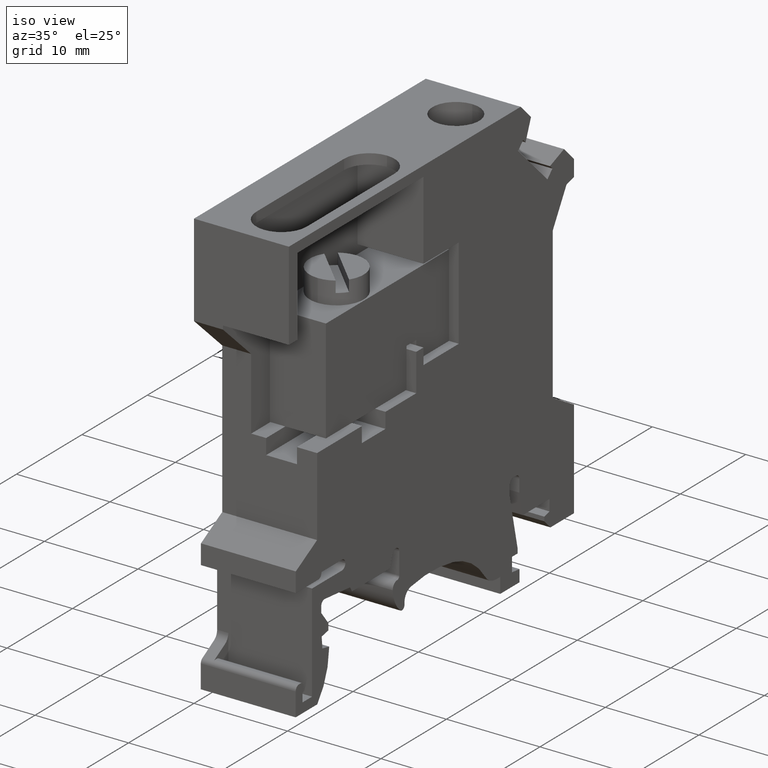
[diagram: clean part render]
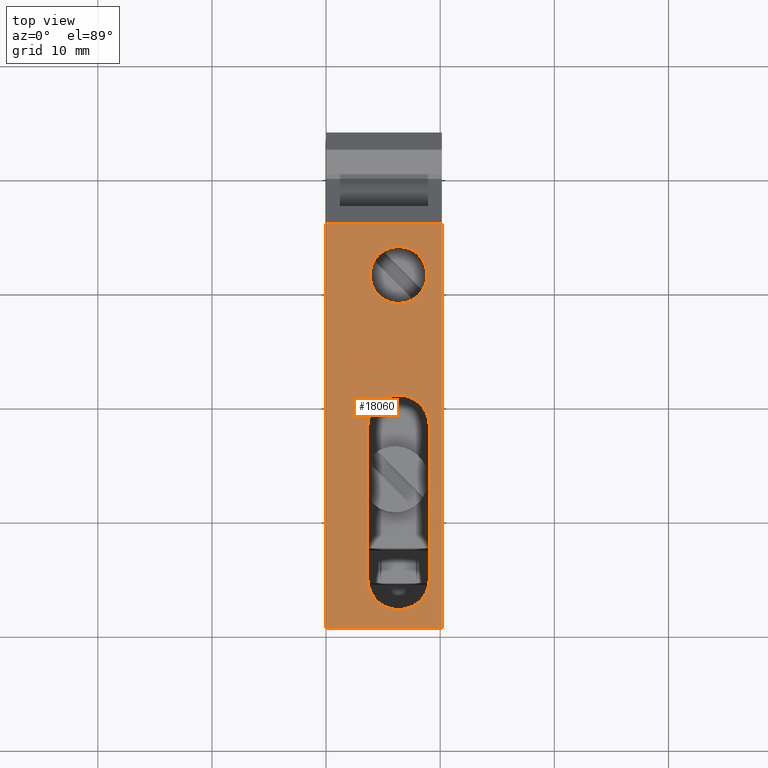
[diagram: tour spotlight — one face highlighted and labeled with its STEP entity id]
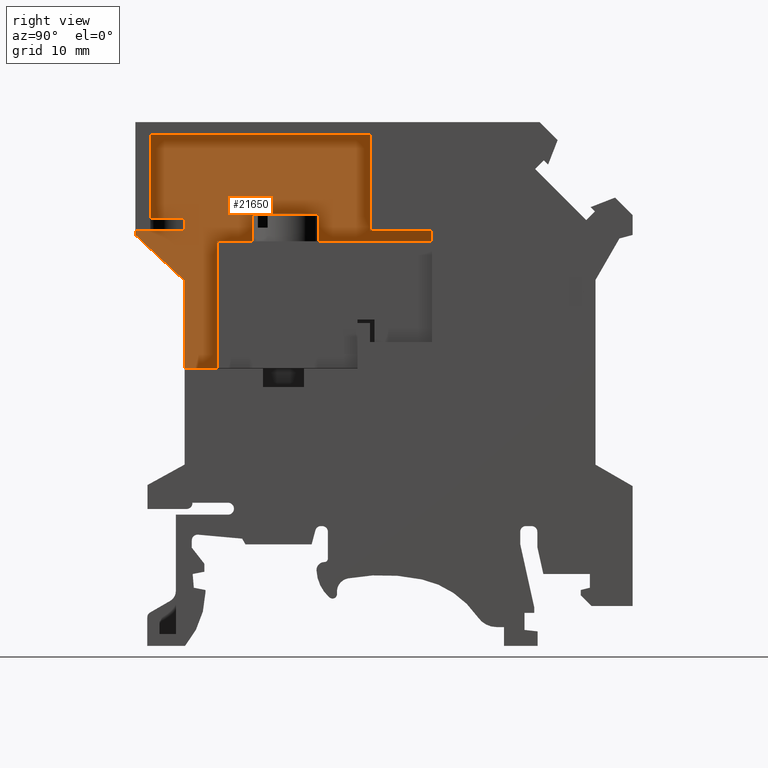
[diagram: tour spotlight — one face highlighted and labeled with its STEP entity id]
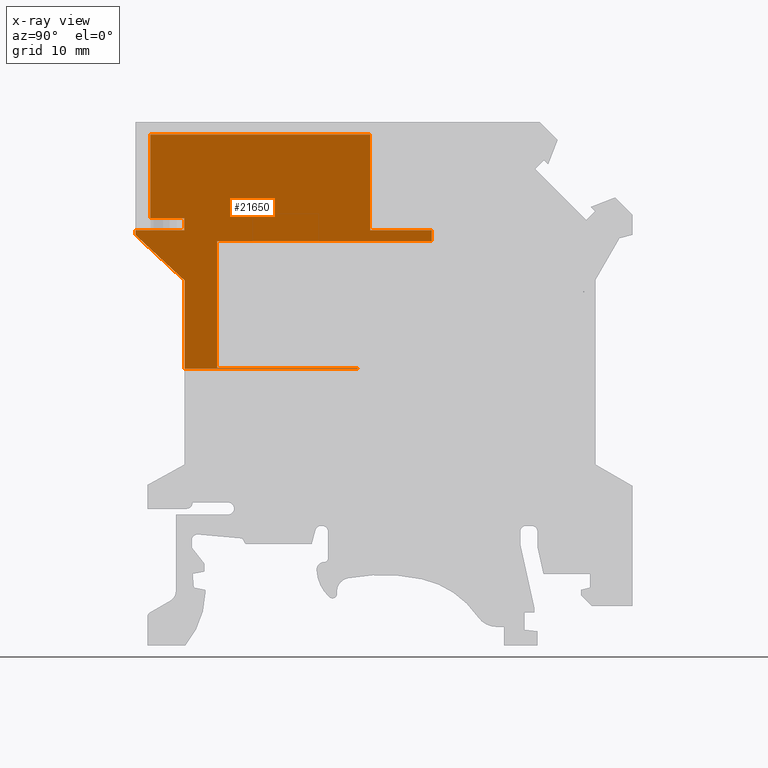
[diagram: x-ray of the same camera — body ghosted, this tour face saturated]
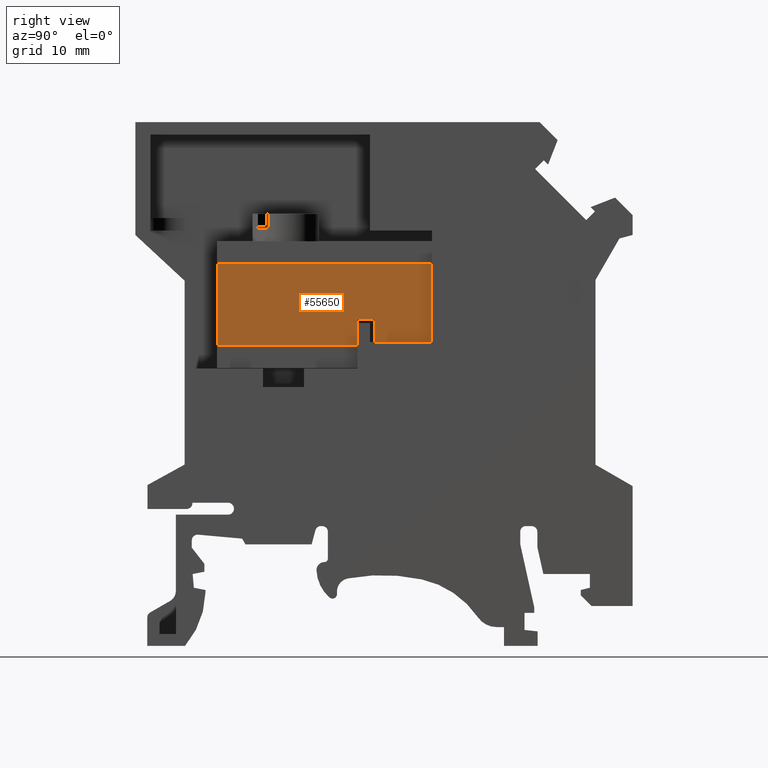
[diagram: tour spotlight — one face highlighted and labeled with its STEP entity id]
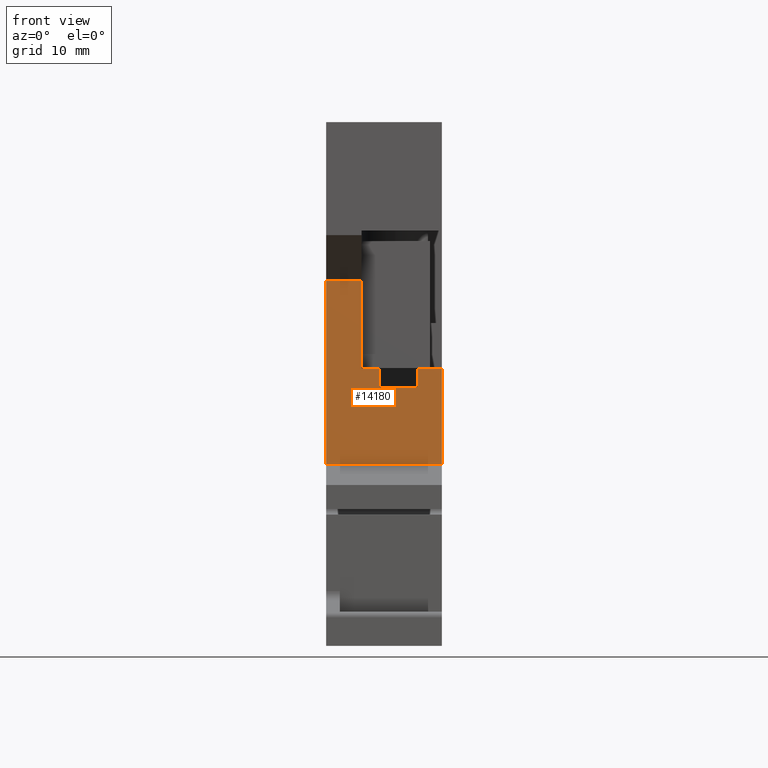
[diagram: tour spotlight — one face highlighted and labeled with its STEP entity id]
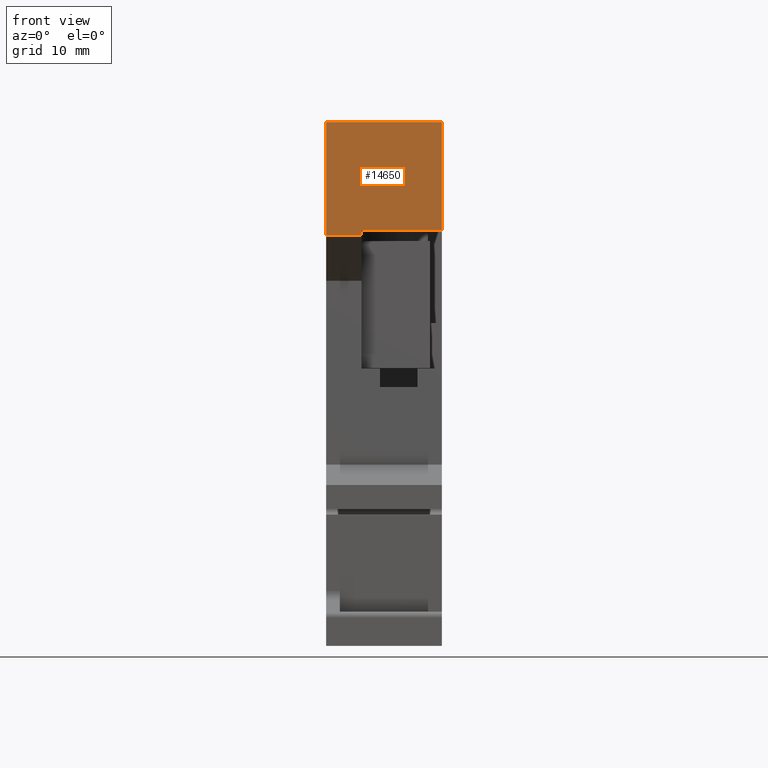
[diagram: tour spotlight — one face highlighted and labeled with its STEP entity id]
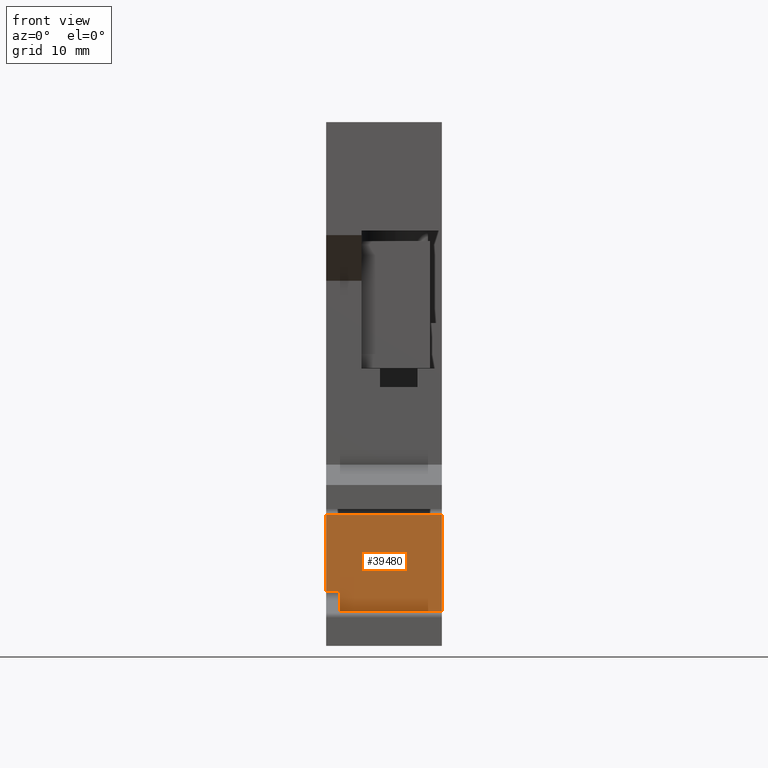
[diagram: tour spotlight — one face highlighted and labeled with its STEP entity id]
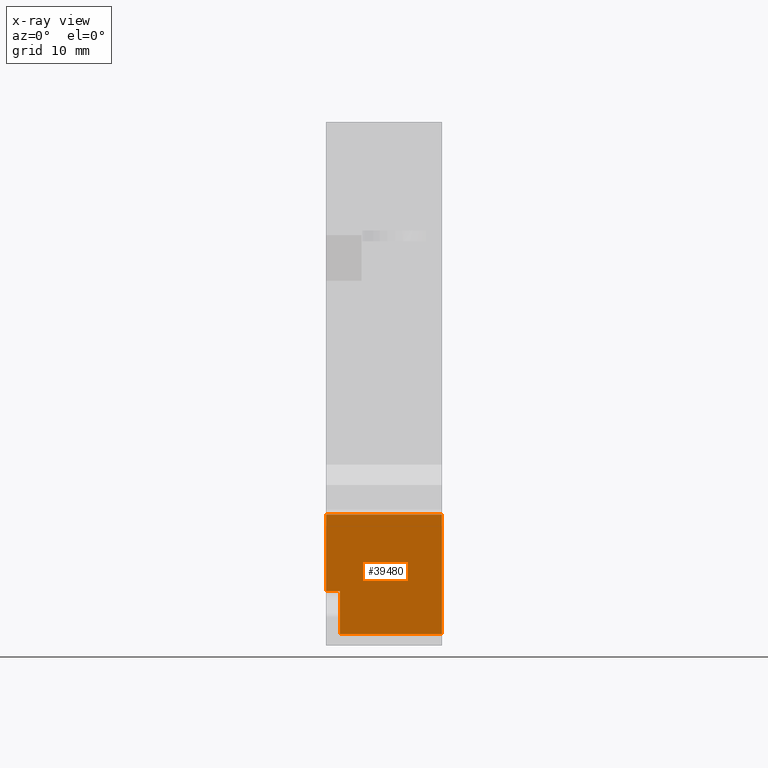
[diagram: x-ray of the same camera — body ghosted, this tour face saturated]
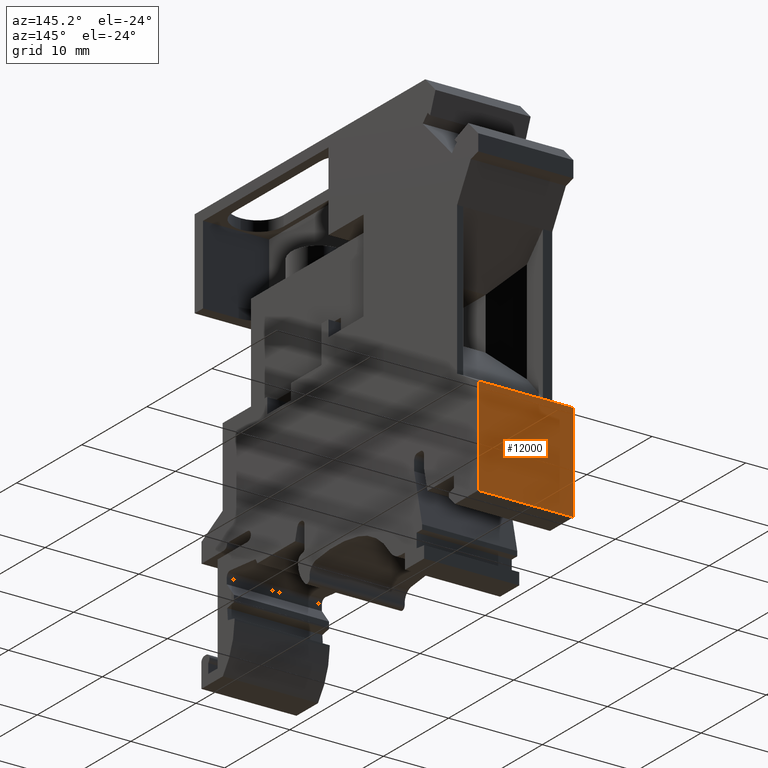
[diagram: tour spotlight — one face highlighted and labeled with its STEP entity id]
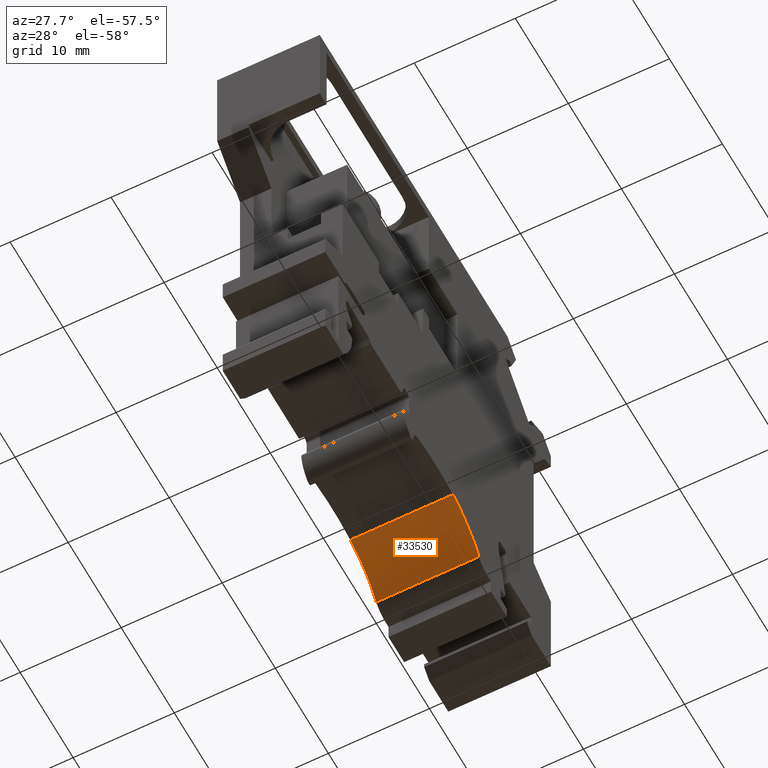
[diagram: tour spotlight — one face highlighted and labeled with its STEP entity id]
A machine part: a face-by-face anatomy tour. The part has 152 B-rep faces; the first image is the clean iso view, then the 8 largest visible faces are spotlighted one at a time (largest first), each with its STEP entity span.

Face 1 — top view, entity #18060. In plain terms, the highlighted planar face has unit normal (0, 0, 1).
Definition (entity closure, byte-faithful):
#600=CARTESIAN_POINT('',(44.9291997327281,36.058658177701,0.));
#610=VERTEX_POINT('',#600);
#640=CARTESIAN_POINT('',(-375.562272307509,36.058658177701,0.));
#650=DIRECTION('',(1.,0.,0.));
#660=VECTOR('',#650,1.);
#670=LINE('',#640,#660);
#680=CARTESIAN_POINT('',(9.51919973272817,36.058658177701,0.));
#690=VERTEX_POINT('',#680);
#700=EDGE_CURVE('',#690,#610,#670,.T.);
#14350=CARTESIAN_POINT('',(9.51919973272817,36.058658177701,10.15));
#14360=VERTEX_POINT('',#14350);
#14570=CARTESIAN_POINT('',(9.51919973272817,36.058658177701,0.));
#14580=DIRECTION('',(0.,0.,1.));
#14590=VECTOR('',#14580,1.);
#14600=LINE('',#14570,#14590);
#14610=EDGE_CURVE('',#690,#14360,#14600,.T.);
#16990=CARTESIAN_POINT('',(44.9291997327281,36.058658177701,10.15));
#17000=VERTEX_POINT('',#16990);
#17030=CARTESIAN_POINT('',(44.9291997327281,36.058658177701,0.));
#17040=DIRECTION('',(0.,0.,1.));
#17050=VECTOR('',#17040,1.);
#17060=LINE('',#17030,#17050);
#17070=EDGE_CURVE('',#610,#17000,#17060,.T.);
#17210=CARTESIAN_POINT('',(36.1291997327281,36.058658177701,12.));
#17220=DIRECTION('',(-0.,1.,0.));
#17230=DIRECTION('',(1.,0.,0.));
#17240=AXIS2_PLACEMENT_3D('',#17210,#17220,#17230);
#17250=PLANE('',#17240);
#17260=CARTESIAN_POINT('',(27.2291997327281,36.058658177701,6.35));
#17270=DIRECTION('',(0.,1.,0.));
#17280=DIRECTION('',(1.,0.,0.));
#17290=AXIS2_PLACEMENT_3D('',#17260,#17270,#17280);
#17300=CIRCLE('',#17290,2.7);
#17310=CARTESIAN_POINT('',(27.2291997327281,36.058658177701,9.05));
#17320=VERTEX_POINT('',#17310);
#17330=CARTESIAN_POINT('',(29.9291997327281,36.058658177701,6.35));
#17340=VERTEX_POINT('',#17330);
#17350=EDGE_CURVE('',#17320,#17340,#17300,.T.);
#17360=ORIENTED_EDGE('',*,*,#17350,.F.);
#17370=CARTESIAN_POINT('',(27.2291997327281,36.058658177701,6.35));
#17380=DIRECTION('',(0.,1.,0.));
#17390=DIRECTION('',(1.,0.,0.));
#17400=AXIS2_PLACEMENT_3D('',#17370,#17380,#17390);
#17410=CIRCLE('',#17400,2.7);
#17420=CARTESIAN_POINT('',(27.2291997327281,36.058658177701,3.65));
#17430=VERTEX_POINT('',#17420);
#17440=EDGE_CURVE('',#17340,#17430,#17410,.T.);
#17450=ORIENTED_EDGE('',*,*,#17440,.F.);
#17460=CARTESIAN_POINT('',(0.,36.058658177701,3.65));
#17470=DIRECTION('',(1.,0.,0.));
#17480=VECTOR('',#17470,1.);
#17490=LINE('',#17460,#17480);
#17500=CARTESIAN_POINT('',(13.8291997327281,36.058658177701,3.65));
#17510=VERTEX_POINT('',#17500);
#17520=EDGE_CURVE('',#17510,#17430,#17490,.T.);
#17530=ORIENTED_EDGE('',*,*,#17520,.T.);
#17540=CARTESIAN_POINT('',(13.8291997327281,36.058658177701,6.35));
#17550=DIRECTION('',(0.,1.,0.));
#17560=DIRECTION('',(1.,0.,0.));
#17570=AXIS2_PLACEMENT_3D('',#17540,#17550,#17560);
#17580=CIRCLE('',#17570,2.7);
#17590=CARTESIAN_POINT('',(11.1291997327281,36.058658177701,6.35));
#17600=VERTEX_POINT('',#17590);
#17610=EDGE_CURVE('',#17510,#17600,#17580,.T.);
#17620=ORIENTED_EDGE('',*,*,#17610,.F.);
#17630=CARTESIAN_POINT('',(13.8291997327281,36.058658177701,6.35));
#17640=DIRECTION('',(0.,-1.,0.));
#17650=DIRECTION('',(-1.,0.,0.));
#17660=AXIS2_PLACEMENT_3D('',#17630,#17640,#17650);
#17670=CIRCLE('',#17660,2.7);
#17680=CARTESIAN_POINT('',(13.8291997327281,36.058658177701,9.05));
#17690=VERTEX_POINT('',#17680);
#17700=EDGE_CURVE('',#17690,#17600,#17670,.T.);
#17710=ORIENTED_EDGE('',*,*,#17700,.T.);
#17720=CARTESIAN_POINT('',(0.,36.058658177701,9.05));
#17730=DIRECTION('',(-1.,0.,0.));
#17740=VECTOR('',#17730,1.);
#17750=LINE('',#17720,#17740);
#17760=EDGE_CURVE('',#17320,#17690,#17750,.T.);
#17770=ORIENTED_EDGE('',*,*,#17760,.T.);
#17780=EDGE_LOOP('',(#17770,#17710,#17620,#17530,#17450,#17360));
#17790=FACE_BOUND('',#17780,.T.);
#17800=ORIENTED_EDGE('',*,*,#700,.F.);
#17810=ORIENTED_EDGE('',*,*,#17070,.F.);
#17820=CARTESIAN_POINT('',(0.,36.058658177701,10.15));
#17830=DIRECTION('',(1.,0.,0.));
#17840=VECTOR('',#17830,1.);
#17850=LINE('',#17820,#17840);
#17860=EDGE_CURVE('',#14360,#17000,#17850,.T.);
#17870=ORIENTED_EDGE('',*,*,#17860,.T.);
#17880=ORIENTED_EDGE('',*,*,#14610,.T.);
#17890=EDGE_LOOP('',(#17880,#17870,#17810,#17800));
#17900=FACE_OUTER_BOUND('',#17890,.T.);
#17910=CARTESIAN_POINT('',(40.4541997327281,36.058658177701,6.35));
#17920=DIRECTION('',(0.,1.,0.));
#17930=DIRECTION('',(1.,0.,0.));
#17940=AXIS2_PLACEMENT_3D('',#17910,#17920,#17930);
#17950=CIRCLE('',#17940,2.5);
#17960=CARTESIAN_POINT('',(42.9541997327281,36.058658177701,6.35));
#17970=VERTEX_POINT('',#17960);
#17980=CARTESIAN_POINT('',(37.9541997327281,36.058658177701,6.35));
#17990=VERTEX_POINT('',#17980);
#18000=EDGE_CURVE('',#17970,#17990,#17950,.T.);
#18010=ORIENTED_EDGE('',*,*,#18000,.F.);
#18020=EDGE_CURVE('',#17990,#17970,#17950,.T.);
#18030=ORIENTED_EDGE('',*,*,#18020,.F.);
#18040=EDGE_LOOP('',(#18030,#18010));
#18050=FACE_BOUND('',#18040,.T.);
#18060=ADVANCED_FACE('',(#17790,#17900,#18050),#17250,.T.);

Face 2 — right view, entity #21650. An x-ray twin of the same camera follows (body ghosted, this face saturated) — the face is partly hidden behind the body. In plain terms, the highlighted planar face has unit normal (1, 0, 0).
Definition (entity closure, byte-faithful):
#9100=CARTESIAN_POINT('',(10.8191997327281,27.6586581777009,3.1));
#9110=VERTEX_POINT('',#9100);
#9160=CARTESIAN_POINT('',(0.,27.6586581777009,3.1));
#9170=DIRECTION('',(-1.,0.,0.));
#9180=VECTOR('',#9170,1.);
#9190=LINE('',#9160,#9180);
#9200=CARTESIAN_POINT('',(13.8191997327281,27.6586581777009,3.1));
#9210=VERTEX_POINT('',#9200);
#9220=EDGE_CURVE('',#9210,#9110,#9190,.T.);
#13250=CARTESIAN_POINT('',(13.8291997327281,22.1586581777013,3.1));
#13260=VERTEX_POINT('',#13250);
#13340=CARTESIAN_POINT('',(9.51919973272817,26.1586581777011,3.1));
#13350=VERTEX_POINT('',#13340);
#13380=CARTESIAN_POINT('',(-375.562272307509,383.542854966767,3.1));
#13390=DIRECTION('',(0.732975177552117,-0.680255385199149,0.));
#13400=VECTOR('',#13390,1.);
#13410=LINE('',#13380,#13400);
#13420=EDGE_CURVE('',#13350,#13260,#13410,.T.);
#13590=CARTESIAN_POINT('',(13.8291997327281,0.,3.1));
#13600=DIRECTION('',(0.,1.,0.));
#13610=VECTOR('',#13600,1.);
#13620=LINE('',#13590,#13610);
#13630=CARTESIAN_POINT('',(13.8291997327281,14.458658177701,3.1));
#13640=VERTEX_POINT('',#13630);
#13650=EDGE_CURVE('',#13640,#13260,#13620,.T.);
#14450=CARTESIAN_POINT('',(9.51919973272817,26.5586581777009,3.1));
#14460=VERTEX_POINT('',#14450);
#14490=CARTESIAN_POINT('',(9.51919973272817,-305.746632837346,3.1));
#14500=DIRECTION('',(0.,-1.,0.));
#14510=VECTOR('',#14500,1.);
#14520=LINE('',#14490,#14510);
#14530=EDGE_CURVE('',#14460,#13350,#14520,.T.);
#18770=CARTESIAN_POINT('',(30.0791997327281,34.958658177701,3.1));
#18780=VERTEX_POINT('',#18770);
#18830=CARTESIAN_POINT('',(0.,34.958658177701,3.1));
#18840=DIRECTION('',(1.,0.,0.));
#18850=VECTOR('',#18840,1.);
#18860=LINE('',#18830,#18850);
#18870=CARTESIAN_POINT('',(10.8191997327281,34.958658177701,3.1));
#18880=VERTEX_POINT('',#18870);
#18890=EDGE_CURVE('',#18880,#18780,#18860,.T.);
#19390=CARTESIAN_POINT('',(13.8191997327281,26.5586581777009,3.1));
#19400=VERTEX_POINT('',#19390);
#19430=CARTESIAN_POINT('',(-375.562272307509,26.5586581777009,3.1));
#19440=DIRECTION('',(-1.,0.,0.));
#19450=VECTOR('',#19440,1.);
#19460=LINE('',#19430,#19450);
#19470=EDGE_CURVE('',#19400,#14460,#19460,.T.);
#19740=CARTESIAN_POINT('',(10.8191997327281,26.5586581777009,3.1));
#19750=DIRECTION('',(0.,1.,0.));
#19760=VECTOR('',#19750,1.);
#19770=LINE('',#19740,#19760);
#19780=EDGE_CURVE('',#9110,#18880,#19770,.T.);
#20670=CARTESIAN_POINT('',(27.2241997327281,15.6522612732526,3.1));
#20680=DIRECTION('',(0.,0.,1.));
#20690=DIRECTION('',(1.,0.,0.));
#20700=AXIS2_PLACEMENT_3D('',#20670,#20680,#20690);
#20710=PLANE('',#20700);
#20720=CARTESIAN_POINT('',(35.479199732728,-305.746632837346,3.1));
#20730=DIRECTION('',(3.53307768457147E-16,1.,0.));
#20740=VECTOR('',#20730,1.);
#20750=LINE('',#20720,#20740);
#20760=CARTESIAN_POINT('',(35.4791997327281,25.611678746394,3.1));
#20770=VERTEX_POINT('',#20760);
#20780=CARTESIAN_POINT('',(35.4791997327281,26.5586581777009,3.1));
#20790=VERTEX_POINT('',#20780);
#20800=EDGE_CURVE('',#20770,#20790,#20750,.T.);
#20810=ORIENTED_EDGE('',*,*,#20800,.T.);
#20820=CARTESIAN_POINT('',(0.,25.611678746394,3.1));
#20830=DIRECTION('',(1.,0.,0.));
#20840=VECTOR('',#20830,1.);
#20850=LINE('',#20820,#20840);
#20860=CARTESIAN_POINT('',(16.6791997327282,25.611678746394,3.1));
#20870=VERTEX_POINT('',#20860);
#20880=EDGE_CURVE('',#20870,#20770,#20850,.T.);
#20890=ORIENTED_EDGE('',*,*,#20880,.T.);
#20900=CARTESIAN_POINT('',(16.6791997327282,0.,3.1));
#20910=DIRECTION('',(0.,-1.,0.));
#20920=VECTOR('',#20910,1.);
#20930=LINE('',#20900,#20920);
#20940=CARTESIAN_POINT('',(16.6791997327282,23.658658177701,3.1));
#20950=VERTEX_POINT('',#20940);
#20960=EDGE_CURVE('',#20870,#20950,#20930,.T.);
#20970=ORIENTED_EDGE('',*,*,#20960,.F.);
#20980=CARTESIAN_POINT('',(16.6791997327282,0.,3.1));
#20990=DIRECTION('',(0.,-1.,0.));
#21000=VECTOR('',#20990,1.);
#21010=LINE('',#20980,#21000);
#21020=CARTESIAN_POINT('',(16.6791997327282,16.458658177701,3.1));
#21030=VERTEX_POINT('',#21020);
#21040=EDGE_CURVE('',#20950,#21030,#21010,.T.);
#21050=ORIENTED_EDGE('',*,*,#21040,.F.);
#21060=CARTESIAN_POINT('',(16.6791997327282,0.,3.1));
#21070=DIRECTION('',(0.,-1.,0.));
#21080=VECTOR('',#21070,1.);
#21090=LINE('',#21060,#21080);
#21100=CARTESIAN_POINT('',(16.6791997327282,14.505637609008,3.1));
#21110=VERTEX_POINT('',#21100);
#21120=EDGE_CURVE('',#21030,#21110,#21090,.T.);
#21130=ORIENTED_EDGE('',*,*,#21120,.F.);
#21140=CARTESIAN_POINT('',(0.,14.505637609008,3.1));
#21150=DIRECTION('',(-1.,0.,0.));
#21160=VECTOR('',#21150,1.);
#21170=LINE('',#21140,#21160);
#21180=CARTESIAN_POINT('',(28.9791997327282,14.505637609008,3.1));
#21190=VERTEX_POINT('',#21180);
#21200=EDGE_CURVE('',#21190,#21110,#21170,.T.);
#21210=ORIENTED_EDGE('',*,*,#21200,.T.);
#21220=CARTESIAN_POINT('',(28.9791997327281,0.,3.1));
#21230=DIRECTION('',(0.,1.,0.));
#21240=VECTOR('',#21230,1.);
#21250=LINE('',#21220,#21240);
#21260=CARTESIAN_POINT('',(28.9791997327281,14.458658177701,3.1));
#21270=VERTEX_POINT('',#21260);
#21280=EDGE_CURVE('',#21270,#21190,#21250,.T.);
#21290=ORIENTED_EDGE('',*,*,#21280,.T.);
#21300=CARTESIAN_POINT('',(0.,14.458658177701,3.1));
#21310=DIRECTION('',(-1.,0.,0.));
#21320=VECTOR('',#21310,1.);
#21330=LINE('',#21300,#21320);
#21340=EDGE_CURVE('',#21270,#13640,#21330,.T.);
#21350=ORIENTED_EDGE('',*,*,#21340,.F.);
#21360=ORIENTED_EDGE('',*,*,#13650,.F.);
#21370=ORIENTED_EDGE('',*,*,#13420,.T.);
#21380=ORIENTED_EDGE('',*,*,#14530,.T.);
#21390=ORIENTED_EDGE('',*,*,#19470,.T.);
#21400=CARTESIAN_POINT('',(13.8191997327281,0.,3.1));
#21410=DIRECTION('',(0.,1.,0.));
#21420=VECTOR('',#21410,1.);
#21430=LINE('',#21400,#21420);
#21440=EDGE_CURVE('',#19400,#9210,#21430,.T.);
#21450=ORIENTED_EDGE('',*,*,#21440,.F.);
#21460=ORIENTED_EDGE('',*,*,#9220,.F.);
#21470=ORIENTED_EDGE('',*,*,#19780,.F.);
#21480=ORIENTED_EDGE('',*,*,#18890,.F.);
#21490=CARTESIAN_POINT('',(30.0791997327281,0.,3.1));
#21500=DIRECTION('',(0.,1.,0.));
#21510=VECTOR('',#21500,1.);
#21520=LINE('',#21490,#21510);
#21530=CARTESIAN_POINT('',(30.0791997327281,26.5586581777009,3.1));
#21540=VERTEX_POINT('',#21530);
#21550=EDGE_CURVE('',#21540,#18780,#21520,.T.);
#21560=ORIENTED_EDGE('',*,*,#21550,.T.);
#21570=CARTESIAN_POINT('',(0.,26.5586581777009,3.1));
#21580=DIRECTION('',(-1.,0.,0.));
#21590=VECTOR('',#21580,1.);
#21600=LINE('',#21570,#21590);
#21610=EDGE_CURVE('',#20790,#21540,#21600,.T.);
#21620=ORIENTED_EDGE('',*,*,#21610,.T.);
#21630=EDGE_LOOP('',(#21620,#21560,#21480,#21470,#21460,#21450,#21390,
#21380,#21370,#21360,#21350,#21290,#21210,#21130,#21050,#20970,#20890,
#20810));
#21640=FACE_OUTER_BOUND('',#21630,.T.);
#21650=ADVANCED_FACE('',(#21640),#20710,.T.);

Face 3 — right view, entity #55650. In plain terms, the highlighted planar face has unit normal (1, 0, 0).
Definition (entity closure, byte-faithful):
#22400=CARTESIAN_POINT('',(35.4791997327281,0.,9.1));
#22410=DIRECTION('',(3.53307768457147E-16,1.,0.));
#22420=VECTOR('',#22410,1.);
#22430=LINE('',#22400,#22420);
#22440=CARTESIAN_POINT('',(35.4791997327281,16.758658177701,9.1));
#22450=VERTEX_POINT('',#22440);
#22460=CARTESIAN_POINT('',(35.4791997327281,23.658658177701,9.1));
#22470=VERTEX_POINT('',#22460);
#22480=EDGE_CURVE('',#22450,#22470,#22430,.T.);
#25090=CARTESIAN_POINT('',(30.4791997327281,16.758658177701,9.1));
#25100=VERTEX_POINT('',#25090);
#25130=CARTESIAN_POINT('',(0.,16.758658177701,9.1));
#25140=DIRECTION('',(1.,0.,0.));
#25150=VECTOR('',#25140,1.);
#25160=LINE('',#25130,#25150);
#25170=EDGE_CURVE('',#25100,#22450,#25160,.T.);
#27280=CARTESIAN_POINT('',(28.9791997327281,18.458658177701,9.1));
#27290=VERTEX_POINT('',#27280);
#50580=CARTESIAN_POINT('',(28.9791997327281,0.,9.1));
#50590=DIRECTION('',(0.,-1.,0.));
#50600=VECTOR('',#50590,1.);
#50610=LINE('',#50580,#50600);
#50620=CARTESIAN_POINT('',(28.9791997327282,16.458658177701,9.1));
#50630=VERTEX_POINT('',#50620);
#50640=EDGE_CURVE('',#27290,#50630,#50610,.T.);
#51460=CARTESIAN_POINT('',(30.4791997327281,18.758658177701,9.1));
#51470=VERTEX_POINT('',#51460);
#51500=CARTESIAN_POINT('',(30.4791997327281,-60.641341822299,9.1));
#51510=DIRECTION('',(0.,1.,0.));
#51520=VECTOR('',#51510,1.);
#51530=LINE('',#51500,#51520);
#51540=EDGE_CURVE('',#25100,#51470,#51530,.T.);
#51710=CARTESIAN_POINT('',(28.9791997327281,-60.641341822299,9.1));
#51720=DIRECTION('',(0.,-1.,0.));
#51730=VECTOR('',#51720,1.);
#51740=LINE('',#51710,#51730);
#51750=CARTESIAN_POINT('',(28.9791997327281,18.758658177701,9.1));
#51760=VERTEX_POINT('',#51750);
#51770=EDGE_CURVE('',#51760,#27290,#51740,.T.);
#52050=CARTESIAN_POINT('',(-29.5208002672719,18.758658177701,9.1));
#52060=DIRECTION('',(-1.,0.,0.));
#52070=VECTOR('',#52060,1.);
#52080=LINE('',#52050,#52070);
#52090=EDGE_CURVE('',#51470,#51760,#52080,.T.);
#52210=CARTESIAN_POINT('',(-29.5208002672719,-60.641341822299,9.1));
#52220=DIRECTION('',(0.,0.,1.));
#52230=DIRECTION('',(1.,0.,0.));
#52240=AXIS2_PLACEMENT_3D('',#52210,#52220,#52230);
#52250=PLANE('',#52240);
#52260=CARTESIAN_POINT('',(0.,23.658658177701,9.1));
#52270=DIRECTION('',(-1.,0.,0.));
#52280=VECTOR('',#52270,1.);
#52290=LINE('',#52260,#52280);
#52300=CARTESIAN_POINT('',(16.6791997327282,23.658658177701,9.1));
#52310=VERTEX_POINT('',#52300);
#52320=EDGE_CURVE('',#22470,#52310,#52290,.T.);
#52930=CARTESIAN_POINT('',(16.6791997327282,16.458658177701,9.1));
#52940=VERTEX_POINT('',#52930);
#55170=CARTESIAN_POINT('',(16.6791997327282,23.658658177701,9.1));
#55180=DIRECTION('',(0.,-1.,0.));
#55190=VECTOR('',#55180,1.);
#55200=LINE('',#55170,#55190);
#55210=EDGE_CURVE('',#52310,#52940,#55200,.T.);
#55380=CARTESIAN_POINT('',(0.,16.458658177701,9.1));
#55390=DIRECTION('',(1.,0.,0.));
#55400=VECTOR('',#55390,1.);
#55410=LINE('',#55380,#55400);
#55420=EDGE_CURVE('',#52940,#50630,#55410,.T.);
#55540=ORIENTED_EDGE('',*,*,#22480,.T.);
#55550=ORIENTED_EDGE('',*,*,#25170,.T.);
#55560=ORIENTED_EDGE('',*,*,#51540,.F.);
#55570=ORIENTED_EDGE('',*,*,#52090,.F.);
#55580=ORIENTED_EDGE('',*,*,#51770,.F.);
#55590=ORIENTED_EDGE('',*,*,#50640,.F.);
#55600=ORIENTED_EDGE('',*,*,#55420,.T.);
#55610=ORIENTED_EDGE('',*,*,#55210,.T.);
#55620=ORIENTED_EDGE('',*,*,#52320,.T.);
#55630=EDGE_LOOP('',(#55620,#55610,#55600,#55590,#55580,#55570,#55560,
#55550,#55540));
#55640=FACE_OUTER_BOUND('',#55630,.T.);
#55650=ADVANCED_FACE('',(#55640),#52250,.T.);

Face 4 — front view, entity #14180. In plain terms, the highlighted planar face has unit normal (0, -1, 0).
Definition (entity closure, byte-faithful):
#840=CARTESIAN_POINT('',(13.8291997327281,22.1586581777013,0.));
#850=VERTEX_POINT('',#840);
#880=CARTESIAN_POINT('',(13.8291997327281,-305.746632837346,0.));
#890=DIRECTION('',(0.,-1.,0.));
#900=VECTOR('',#890,1.);
#910=LINE('',#880,#900);
#920=CARTESIAN_POINT('',(13.8291997327281,6.04912815159126,0.));
#930=VERTEX_POINT('',#920);
#940=EDGE_CURVE('',#850,#930,#910,.T.);
#12890=CARTESIAN_POINT('',(13.8291997327281,6.04912815159126,10.15));
#12900=VERTEX_POINT('',#12890);
#13000=CARTESIAN_POINT('',(13.8291997327281,6.04912815159126,0.));
#13010=DIRECTION('',(0.,0.,-1.));
#13020=VECTOR('',#13010,1.);
#13030=LINE('',#13000,#13020);
#13040=EDGE_CURVE('',#12900,#930,#13030,.T.);
#13210=CARTESIAN_POINT('',(13.8291997327281,22.1586581777013,8.15));
#13220=DIRECTION('',(0.,0.,-1.));
#13230=VECTOR('',#13220,1.);
#13240=LINE('',#13210,#13230);
#13250=CARTESIAN_POINT('',(13.8291997327281,22.1586581777013,3.1));
#13260=VERTEX_POINT('',#13250);
#13270=EDGE_CURVE('',#13260,#850,#13240,.T.);
#13540=CARTESIAN_POINT('',(13.8291997327281,22.1586581777009,12.));
#13550=DIRECTION('',(-1.,0.,0.));
#13560=DIRECTION('',(0.,1.,0.));
#13570=AXIS2_PLACEMENT_3D('',#13540,#13550,#13560);
#13580=PLANE('',#13570);
#13590=CARTESIAN_POINT('',(13.8291997327281,0.,3.1));
#13600=DIRECTION('',(0.,1.,0.));
#13610=VECTOR('',#13600,1.);
#13620=LINE('',#13590,#13610);
#13630=CARTESIAN_POINT('',(13.8291997327281,14.458658177701,3.1));
#13640=VERTEX_POINT('',#13630);
#13650=EDGE_CURVE('',#13640,#13260,#13620,.T.);
#13660=ORIENTED_EDGE('',*,*,#13650,.T.);
#13670=CARTESIAN_POINT('',(13.8291997327281,14.458658177701,0.));
#13680=DIRECTION('',(0.,0.,-1.));
#13690=VECTOR('',#13680,1.);
#13700=LINE('',#13670,#13690);
#13710=CARTESIAN_POINT('',(13.8291997327281,14.458658177701,4.7));
#13720=VERTEX_POINT('',#13710);
#13730=EDGE_CURVE('',#13720,#13640,#13700,.T.);
#13740=ORIENTED_EDGE('',*,*,#13730,.T.);
#13750=CARTESIAN_POINT('',(13.8291997327281,0.,4.7));
#13760=DIRECTION('',(0.,1.,0.));
#13770=VECTOR('',#13760,1.);
#13780=LINE('',#13750,#13770);
#13790=CARTESIAN_POINT('',(13.8291997327281,12.8086581777009,4.7));
#13800=VERTEX_POINT('',#13790);
#13810=EDGE_CURVE('',#13800,#13720,#13780,.T.);
#13820=ORIENTED_EDGE('',*,*,#13810,.T.);
#13830=CARTESIAN_POINT('',(13.8291997327281,12.8086581777009,8.15));
#13840=DIRECTION('',(0.,0.,-1.));
#13850=VECTOR('',#13840,1.);
#13860=LINE('',#13830,#13850);
#13870=CARTESIAN_POINT('',(13.8291997327281,12.8086581777009,8.));
#13880=VERTEX_POINT('',#13870);
#13890=EDGE_CURVE('',#13880,#13800,#13860,.T.);
#13900=ORIENTED_EDGE('',*,*,#13890,.T.);
#13910=CARTESIAN_POINT('',(13.8291997327281,-305.746632837346,8.));
#13920=DIRECTION('',(0.,-1.,0.));
#13930=VECTOR('',#13920,1.);
#13940=LINE('',#13910,#13930);
#13950=CARTESIAN_POINT('',(13.8291997327281,14.458658177701,8.));
#13960=VERTEX_POINT('',#13950);
#13970=EDGE_CURVE('',#13960,#13880,#13940,.T.);
#13980=ORIENTED_EDGE('',*,*,#13970,.T.);
#13990=CARTESIAN_POINT('',(13.8291997327281,14.458658177701,0.));
#14000=DIRECTION('',(0.,0.,-1.));
#14010=VECTOR('',#14000,1.);
#14020=LINE('',#13990,#14010);
#14030=CARTESIAN_POINT('',(13.8291997327281,14.458658177701,10.15));
#14040=VERTEX_POINT('',#14030);
#14050=EDGE_CURVE('',#14040,#13960,#14020,.T.);
#14060=ORIENTED_EDGE('',*,*,#14050,.T.);
#14070=CARTESIAN_POINT('',(13.8291997327281,0.,10.15));
#14080=DIRECTION('',(0.,1.,0.));
#14090=VECTOR('',#14080,1.);
#14100=LINE('',#14070,#14090);
#14110=EDGE_CURVE('',#12900,#14040,#14100,.T.);
#14120=ORIENTED_EDGE('',*,*,#14110,.T.);
#14130=ORIENTED_EDGE('',*,*,#13040,.F.);
#14140=ORIENTED_EDGE('',*,*,#940,.T.);
#14150=ORIENTED_EDGE('',*,*,#13270,.T.);
#14160=EDGE_LOOP('',(#14150,#14140,#14130,#14120,#14060,#13980,#13900,
#13820,#13740,#13660));
#14170=FACE_OUTER_BOUND('',#14160,.T.);
#14180=ADVANCED_FACE('',(#14170),#13580,.T.);

Face 5 — front view, entity #14650. In plain terms, the highlighted planar face has unit normal (0, 1, 0).
Definition (entity closure, byte-faithful):
#680=CARTESIAN_POINT('',(9.51919973272817,36.058658177701,0.));
#690=VERTEX_POINT('',#680);
#720=CARTESIAN_POINT('',(9.51919973272817,-305.746632837346,0.));
#730=DIRECTION('',(0.,-1.,0.));
#740=VECTOR('',#730,1.);
#750=LINE('',#720,#740);
#760=CARTESIAN_POINT('',(9.51919973272817,26.1586581777011,0.));
#770=VERTEX_POINT('',#760);
#780=EDGE_CURVE('',#690,#770,#750,.T.);
#13300=CARTESIAN_POINT('',(9.51919973272817,26.1586581777011,8.15));
#13310=DIRECTION('',(0.,0.,1.));
#13320=VECTOR('',#13310,1.);
#13330=LINE('',#13300,#13320);
#13340=CARTESIAN_POINT('',(9.51919973272817,26.1586581777011,3.1));
#13350=VERTEX_POINT('',#13340);
#13360=EDGE_CURVE('',#770,#13350,#13330,.T.);
#14260=CARTESIAN_POINT('',(9.51919973272817,28.1586581777009,0.));
#14270=DIRECTION('',(1.,0.,0.));
#14280=DIRECTION('',(0.,1.,0.));
#14290=AXIS2_PLACEMENT_3D('',#14260,#14270,#14280);
#14300=PLANE('',#14290);
#14310=CARTESIAN_POINT('',(9.51919973272817,0.,10.15));
#14320=DIRECTION('',(0.,-1.,0.));
#14330=VECTOR('',#14320,1.);
#14340=LINE('',#14310,#14330);
#14350=CARTESIAN_POINT('',(9.51919973272817,36.058658177701,10.15));
#14360=VERTEX_POINT('',#14350);
#14370=CARTESIAN_POINT('',(9.51919973272817,26.5586581777009,10.15));
#14380=VERTEX_POINT('',#14370);
#14390=EDGE_CURVE('',#14360,#14380,#14340,.T.);
#14400=ORIENTED_EDGE('',*,*,#14390,.F.);
#14410=CARTESIAN_POINT('',(9.51919973272817,26.5586581777009,0.));
#14420=DIRECTION('',(0.,0.,-1.));
#14430=VECTOR('',#14420,1.);
#14440=LINE('',#14410,#14430);
#14450=CARTESIAN_POINT('',(9.51919973272817,26.5586581777009,3.1));
#14460=VERTEX_POINT('',#14450);
#14470=EDGE_CURVE('',#14380,#14460,#14440,.T.);
#14480=ORIENTED_EDGE('',*,*,#14470,.F.);
#14490=CARTESIAN_POINT('',(9.51919973272817,-305.746632837346,3.1));
#14500=DIRECTION('',(0.,-1.,0.));
#14510=VECTOR('',#14500,1.);
#14520=LINE('',#14490,#14510);
#14530=EDGE_CURVE('',#14460,#13350,#14520,.T.);
#14540=ORIENTED_EDGE('',*,*,#14530,.F.);
#14550=ORIENTED_EDGE('',*,*,#13360,.T.);
#14560=ORIENTED_EDGE('',*,*,#780,.T.);
#14570=CARTESIAN_POINT('',(9.51919973272817,36.058658177701,0.));
#14580=DIRECTION('',(0.,0.,1.));
#14590=VECTOR('',#14580,1.);
#14600=LINE('',#14570,#14590);
#14610=EDGE_CURVE('',#690,#14360,#14600,.T.);
#14620=ORIENTED_EDGE('',*,*,#14610,.F.);
#14630=EDGE_LOOP('',(#14620,#14560,#14550,#14540,#14480,#14400));
#14640=FACE_OUTER_BOUND('',#14630,.T.);
#14650=ADVANCED_FACE('',(#14640),#14300,.F.);

Face 6 — front view, entity #39480. An x-ray twin of the same camera follows (body ghosted, this face saturated) — the face is partly hidden behind the body. In plain terms, the highlighted planar face has unit normal (0, -1, 0).
Definition (entity closure, byte-faithful):
#1670=CARTESIAN_POINT('',(13.0591997327281,1.65865817770094,0.));
#1680=VERTEX_POINT('',#1670);
#1710=CARTESIAN_POINT('',(13.0591997327281,-5.03194074554045,0.));
#1720=DIRECTION('',(0.,1.,0.));
#1730=VECTOR('',#1720,1.);
#1740=LINE('',#1710,#1730);
#1750=CARTESIAN_POINT('',(13.0591997327281,-5.03194074554045,0.));
#1760=VERTEX_POINT('',#1750);
#1770=EDGE_CURVE('',#1760,#1680,#1740,.T.);
#36360=CARTESIAN_POINT('',(13.0591997327281,-5.03194074554045,12.));
#36370=DIRECTION('',(0.,0.,-1.));
#36380=VECTOR('',#36370,1.);
#36390=LINE('',#36360,#36380);
#36400=CARTESIAN_POINT('',(13.0591997327281,-5.03194074554045,1.2));
#36410=VERTEX_POINT('',#36400);
#36420=EDGE_CURVE('',#36410,#1760,#36390,.T.);
#37980=CARTESIAN_POINT('',(13.0591997327281,-239.465655136521,1.2));
#37990=DIRECTION('',(0.,-1.,0.));
#38000=VECTOR('',#37990,1.);
#38010=LINE('',#37980,#38000);
#38020=CARTESIAN_POINT('',(13.0591997327281,-8.79134182229905,1.2));
#38030=VERTEX_POINT('',#38020);
#38040=EDGE_CURVE('',#36410,#38030,#38010,.T.);
#39160=CARTESIAN_POINT('',(13.0591997327281,0.658658177700943,12.));
#39170=DIRECTION('',(-1.,0.,0.));
#39180=DIRECTION('',(0.,1.,0.));
#39190=AXIS2_PLACEMENT_3D('',#39160,#39170,#39180);
#39200=PLANE('',#39190);
#39210=CARTESIAN_POINT('',(13.0591997327281,-8.79134182229905,0.));
#39220=DIRECTION('',(0.,0.,1.));
#39230=VECTOR('',#39220,1.);
#39240=LINE('',#39210,#39230);
#39250=CARTESIAN_POINT('',(13.0591997327281,-8.79134182229905,10.15));
#39260=VERTEX_POINT('',#39250);
#39270=EDGE_CURVE('',#38030,#39260,#39240,.T.);
#39280=ORIENTED_EDGE('',*,*,#39270,.T.);
#39290=ORIENTED_EDGE('',*,*,#38040,.T.);
#39300=ORIENTED_EDGE('',*,*,#36420,.F.);
#39310=ORIENTED_EDGE('',*,*,#1770,.F.);
#39320=CARTESIAN_POINT('',(13.0591997327281,1.65865817770094,0.));
#39330=DIRECTION('',(0.,0.,1.));
#39340=VECTOR('',#39330,1.);
#39350=LINE('',#39320,#39340);
#39360=CARTESIAN_POINT('',(13.0591997327281,1.65865817770094,10.15));
#39370=VERTEX_POINT('',#39360);
#39380=EDGE_CURVE('',#1680,#39370,#39350,.T.);
#39390=ORIENTED_EDGE('',*,*,#39380,.F.);
#39400=CARTESIAN_POINT('',(13.0591997327281,0.,10.15));
#39410=DIRECTION('',(0.,1.,0.));
#39420=VECTOR('',#39410,1.);
#39430=LINE('',#39400,#39420);
#39440=EDGE_CURVE('',#39260,#39370,#39430,.T.);
#39450=ORIENTED_EDGE('',*,*,#39440,.T.);
#39460=EDGE_LOOP('',(#39450,#39390,#39310,#39300,#39290,#39280));
#39470=FACE_OUTER_BOUND('',#39460,.T.);
#39480=ADVANCED_FACE('',(#39470),#39200,.T.);

Face 7 — auxiliary view, entity #12000. In plain terms, the highlighted planar face has unit normal (0, 1, 0).
Definition (entity closure, byte-faithful):
#5990=CARTESIAN_POINT('',(53.0791997327281,-6.34134182229906,0.));
#6000=VERTEX_POINT('',#5990);
#6030=CARTESIAN_POINT('',(53.0791997327281,-239.465655136521,0.));
#6040=DIRECTION('',(0.,1.,0.));
#6050=VECTOR('',#6040,1.);
#6060=LINE('',#6030,#6050);
#6070=CARTESIAN_POINT('',(53.0791997327281,4.16587233737272,0.));
#6080=VERTEX_POINT('',#6070);
#6090=EDGE_CURVE('',#6000,#6080,#6060,.T.);
#7500=CARTESIAN_POINT('',(53.0791997327281,4.16587233737272,0.));
#7510=DIRECTION('',(0.,0.,-1.));
#7520=VECTOR('',#7510,1.);
#7530=LINE('',#7500,#7520);
#7540=CARTESIAN_POINT('',(53.0791997327281,4.16587233737272,10.15));
#7550=VERTEX_POINT('',#7540);
#7560=EDGE_CURVE('',#7550,#6080,#7530,.T.);
#11770=CARTESIAN_POINT('',(53.0791997327281,2.65865817770094,12.));
#11780=DIRECTION('',(1.,0.,0.));
#11790=DIRECTION('',(0.,-1.,0.));
#11800=AXIS2_PLACEMENT_3D('',#11770,#11780,#11790);
#11810=PLANE('',#11800);
#11820=ORIENTED_EDGE('',*,*,#7560,.F.);
#11830=ORIENTED_EDGE('',*,*,#6090,.T.);
#11840=CARTESIAN_POINT('',(53.0791997327281,-6.34134182229906,0.));
#11850=DIRECTION('',(0.,0.,1.));
#11860=VECTOR('',#11850,1.);
#11870=LINE('',#11840,#11860);
#11880=CARTESIAN_POINT('',(53.0791997327281,-6.34134182229906,10.15));
#11890=VERTEX_POINT('',#11880);
#11900=EDGE_CURVE('',#6000,#11890,#11870,.T.);
#11910=ORIENTED_EDGE('',*,*,#11900,.F.);
#11920=CARTESIAN_POINT('',(53.0791997327281,0.,10.15));
#11930=DIRECTION('',(0.,-1.,0.));
#11940=VECTOR('',#11930,1.);
#11950=LINE('',#11920,#11940);
#11960=EDGE_CURVE('',#7550,#11890,#11950,.T.);
#11970=ORIENTED_EDGE('',*,*,#11960,.T.);
#11980=EDGE_LOOP('',(#11970,#11910,#11830,#11820));
#11990=FACE_OUTER_BOUND('',#11980,.T.);
#12000=ADVANCED_FACE('',(#11990),#11810,.T.);

Face 8 — auxiliary view, entity #33530. In plain terms, the highlighted cylindrical surface (partial cylindrical patch) has radius 8 mm, axis along (1, 0, 0).
Definition (entity closure, byte-faithful):
#4110=CARTESIAN_POINT('',(34.620024337029,-4.01532864594071,0.));
#4120=VERTEX_POINT('',#4110);
#4150=CARTESIAN_POINT('',(32.9109751497199,-11.8306437947597,0.));
#4160=DIRECTION('',(0.,0.,1.));
#4170=DIRECTION('',(1.,0.,0.));
#4180=AXIS2_PLACEMENT_3D('',#4150,#4160,#4170);
#4190=CIRCLE('',#4180,7.99999999999997);
#4200=CARTESIAN_POINT('',(39.5175548161265,-7.31920221679127,0.));
#4210=VERTEX_POINT('',#4200);
#4220=EDGE_CURVE('',#4210,#4120,#4190,.T.);
#32750=CARTESIAN_POINT('',(34.620024337029,-4.01532864594071,10.15));
#32760=VERTEX_POINT('',#32750);
#32790=CARTESIAN_POINT('',(34.620024337029,-4.01532864594071,12.));
#32800=DIRECTION('',(0.,0.,-1.));
#32810=VECTOR('',#32800,1.);
#32820=LINE('',#32790,#32810);
#32830=EDGE_CURVE('',#32760,#4120,#32820,.T.);
#33290=CARTESIAN_POINT('',(32.9109751497199,-11.8306437947597,12.));
#33300=DIRECTION('',(0.,0.,1.));
#33310=DIRECTION('',(1.,0.,0.));
#33320=AXIS2_PLACEMENT_3D('',#33290,#33300,#33310);
#33330=CYLINDRICAL_SURFACE('',#33320,7.99999999999997);
#33340=ORIENTED_EDGE('',*,*,#32830,.T.);
#33350=CARTESIAN_POINT('',(32.9109751497199,-11.8306437947597,10.15));
#33360=DIRECTION('',(0.,0.,1.));
#33370=DIRECTION('',(1.,0.,0.));
#33380=AXIS2_PLACEMENT_3D('',#33350,#33360,#33370);
#33390=CIRCLE('',#33380,7.99999999999997);
#33400=CARTESIAN_POINT('',(39.5175548161265,-7.31920221679126,10.15));
#33410=VERTEX_POINT('',#33400);
#33420=EDGE_CURVE('',#33410,#32760,#33390,.T.);
#33430=ORIENTED_EDGE('',*,*,#33420,.T.);
#33440=CARTESIAN_POINT('',(39.5175548161265,-7.31920221679127,12.));
#33450=DIRECTION('',(0.,0.,-1.));
#33460=VECTOR('',#33450,1.);
#33470=LINE('',#33440,#33460);
#33480=EDGE_CURVE('',#33410,#4210,#33470,.T.);
#33490=ORIENTED_EDGE('',*,*,#33480,.F.);
#33500=ORIENTED_EDGE('',*,*,#4220,.F.);
#33510=EDGE_LOOP('',(#33500,#33490,#33430,#33340));
#33520=FACE_OUTER_BOUND('',#33510,.T.);
#33530=ADVANCED_FACE('',(#33520),#33330,.F.);